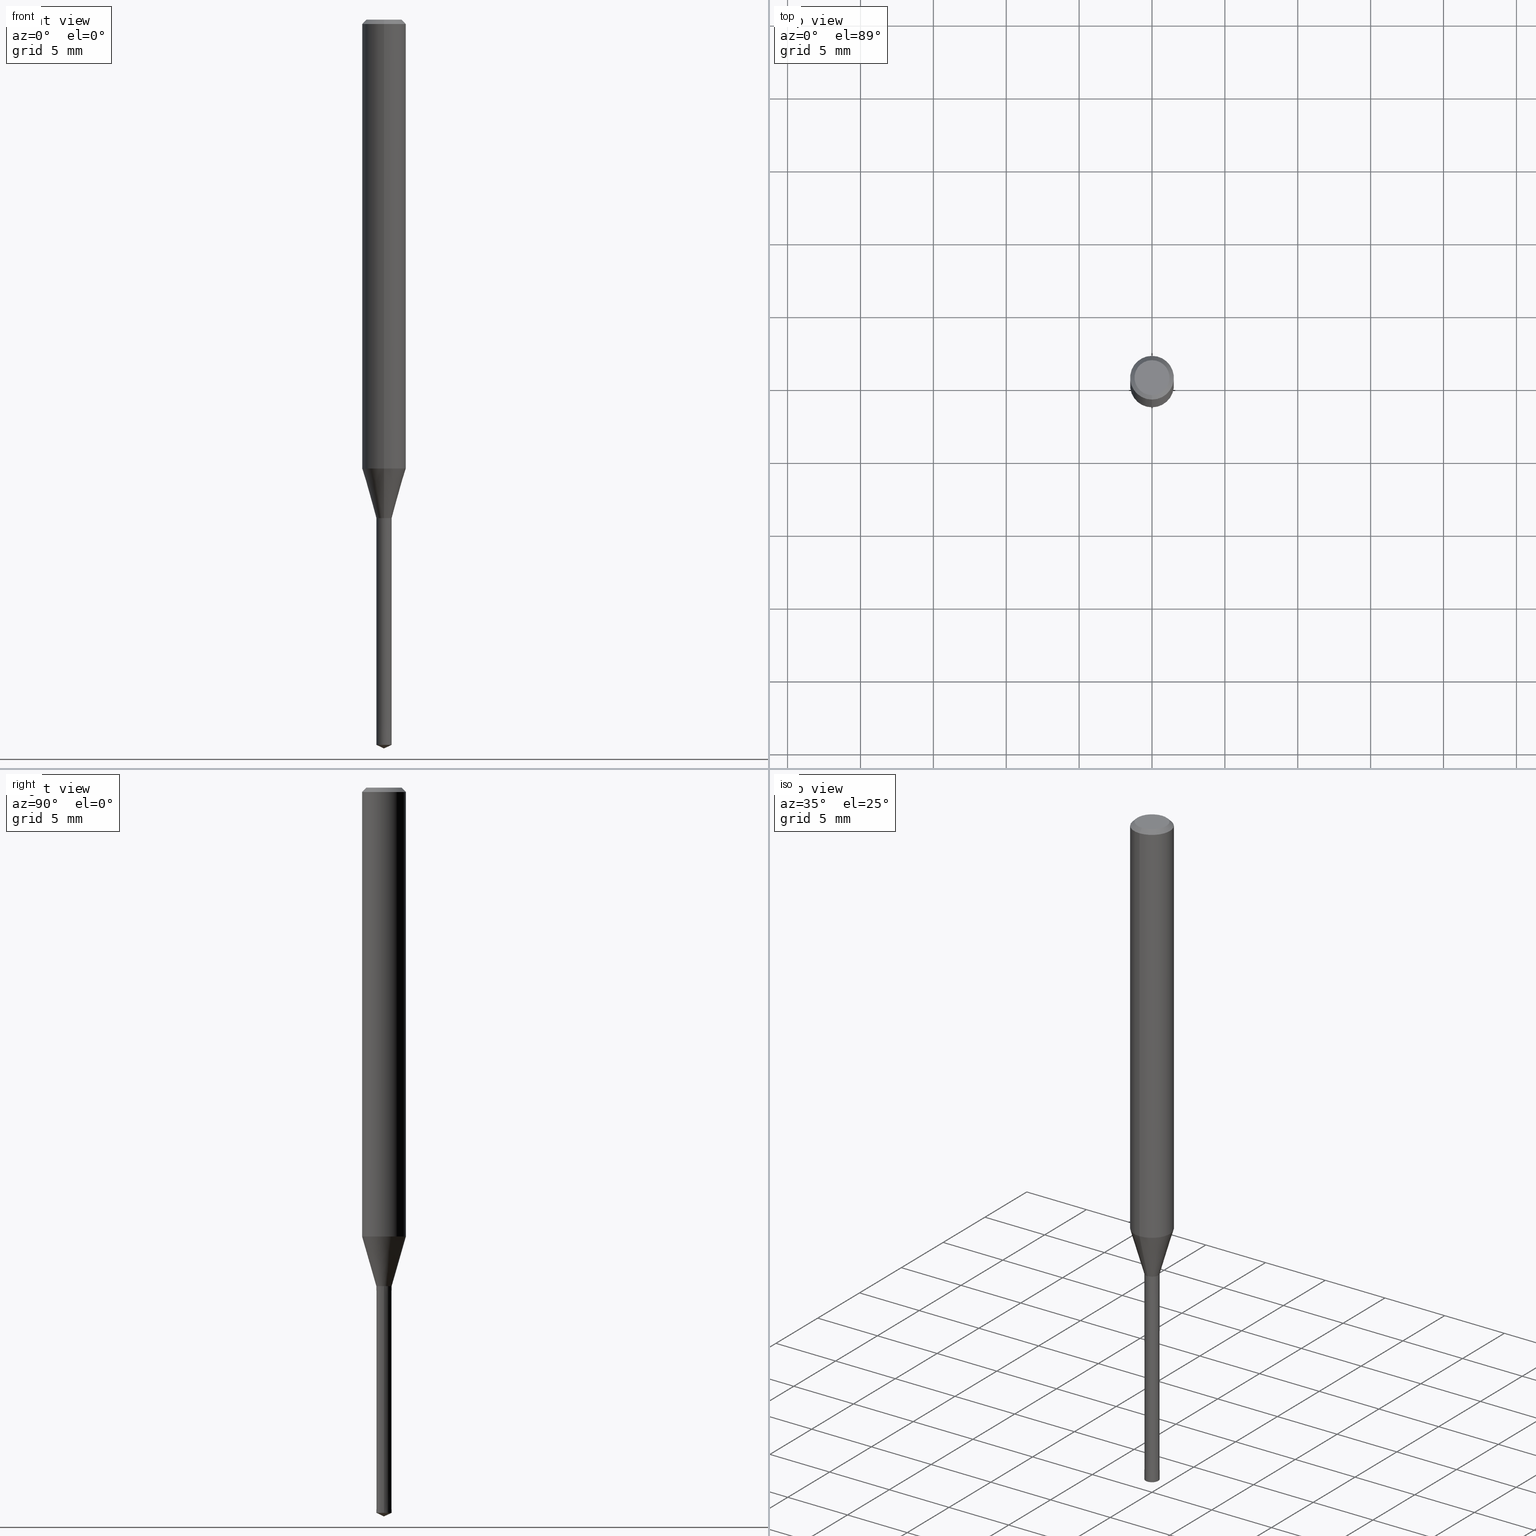
[diagram: canonical four-view strip — front | top / right | iso, engineering-drawing reading convention]
A machine part, canonical four-view strip (front | top / right | iso — engineering-drawing reading convention). The complete STEP part file that produces these views, byte-faithful:
ISO-10303-21;
HEADER;
FILE_DESCRIPTION(('no description'),'unknown implementation level');
FILE_NAME('UTDLX2105-158-Huellk.stp','  ',('CIMSOURCE GmbH'),('CADClick - KiM GmbH - www.kimweb.de'),'unknown preprocess','ACIS','unknown authorization');
FILE_SCHEMA(('automotive_design'));
ENDSEC;
DATA;
#1=MECHANICAL_DESIGN_GEOMETRIC_PRESENTATION_REPRESENTATION(' ',(#14,#15,#16,#17,#18,#19,#20,#21,#22,#23,#24,#25,#26,#27,#28,#29,#30,#31,#32,#33,#34,#35,#36,#37,#38,#39,#40,#41,#42,#43,#44,#45,#46,#47,#48,#49,#50,#51,#52,#53,#54,#55,#56,#57,#58,#59,#60,#61,#62,#63,#64,#65,#66,#67,#68,#69,#70,#71),#10);
#2=PRODUCT_DEFINITION_CONTEXT('',#72,'design');
#3=APPLICATION_PROTOCOL_DEFINITION('INTERNATIONAL STANDARD','automotive_design',1994,#72);
#4=PRODUCT_CATEGORY_RELATIONSHIP('NONE','NONE',#73,#74);
#5=SHAPE_DEFINITION_REPRESENTATION(#75,#76);
#6=PRODUCT_DEFINITION_CONTEXT('',#77,'design');
#7=APPLICATION_PROTOCOL_DEFINITION('INTERNATIONAL STANDARD','automotive_design',1994,#77);
#8=PRODUCT_CATEGORY_RELATIONSHIP('NONE','NONE',#78,#79);
#9=SHAPE_DEFINITION_REPRESENTATION(#80,#81);
#10= (GEOMETRIC_REPRESENTATION_CONTEXT(3)GLOBAL_UNCERTAINTY_ASSIGNED_CONTEXT((#84))GLOBAL_UNIT_ASSIGNED_CONTEXT((#86,#87,#88))REPRESENTATION_CONTEXT('NONE','WORKSPACE'));
#14=STYLED_ITEM('',(#90),#91);
#15=STYLED_ITEM('',(#92),#93);
#16=STYLED_ITEM('',(#94),#95);
#17=STYLED_ITEM('',(#96),#97);
#18=STYLED_ITEM('',(#98),#99);
#19=STYLED_ITEM('',(#100),#101);
#20=STYLED_ITEM('',(#102),#103);
#21=STYLED_ITEM('',(#104),#105);
#22=STYLED_ITEM('',(#106),#107);
#23=STYLED_ITEM('',(#108),#109);
#24=STYLED_ITEM('',(#110),#111);
#25=STYLED_ITEM('',(#112),#113);
#26=STYLED_ITEM('',(#114),#115);
#27=STYLED_ITEM('',(#116),#117);
#28=STYLED_ITEM('',(#118),#119);
#29=STYLED_ITEM('',(#120),#121);
#30=STYLED_ITEM('',(#122),#123);
#31=STYLED_ITEM('',(#124),#125);
#32=STYLED_ITEM('',(#126),#127);
#33=STYLED_ITEM('',(#128),#129);
#34=STYLED_ITEM('',(#130),#131);
#35=STYLED_ITEM('',(#132),#133);
#36=STYLED_ITEM('',(#134),#135);
#37=STYLED_ITEM('',(#136),#137);
#38=STYLED_ITEM('',(#138),#139);
#39=STYLED_ITEM('',(#140),#141);
#40=STYLED_ITEM('',(#142),#143);
#41=STYLED_ITEM('',(#144),#145);
#42=STYLED_ITEM('',(#146),#147);
#43=STYLED_ITEM('',(#148),#149);
#44=STYLED_ITEM('',(#150),#151);
#45=STYLED_ITEM('',(#152),#153);
#46=STYLED_ITEM('',(#154),#155);
#47=STYLED_ITEM('',(#156),#157);
#48=STYLED_ITEM('',(#158),#159);
#49=STYLED_ITEM('',(#160),#161);
#50=STYLED_ITEM('',(#162),#163);
#51=STYLED_ITEM('',(#164),#165);
#52=STYLED_ITEM('',(#166),#167);
#53=STYLED_ITEM('',(#168),#169);
#54=STYLED_ITEM('',(#170),#171);
#55=STYLED_ITEM('',(#172),#173);
#56=STYLED_ITEM('',(#174),#175);
#57=STYLED_ITEM('',(#176),#177);
#58=STYLED_ITEM('',(#178),#179);
#59=STYLED_ITEM('',(#180),#181);
#60=STYLED_ITEM('',(#182),#183);
#61=STYLED_ITEM('',(#184),#185);
#62=STYLED_ITEM('',(#186),#187);
#63=STYLED_ITEM('',(#188),#189);
#64=STYLED_ITEM('',(#190),#191);
#65=STYLED_ITEM('',(#192),#193);
#66=STYLED_ITEM('',(#194),#195);
#67=STYLED_ITEM('',(#196),#197);
#68=STYLED_ITEM('',(#198),#199);
#69=STYLED_ITEM('',(#200),#201);
#70=STYLED_ITEM('',(#202),#203);
#71=STYLED_ITEM('',(#204),#205);
#72=APPLICATION_CONTEXT(' ');
#73=PRODUCT_CATEGORY('part','NONE');
#74=PRODUCT_RELATED_PRODUCT_CATEGORY('detail',' ',(#206));
#75=PRODUCT_DEFINITION_SHAPE('NONE','NONE',#207);
#76=ADVANCED_BREP_SHAPE_REPRESENTATION('1',(#157,#208),#10);
#77=APPLICATION_CONTEXT(' ');
#78=PRODUCT_CATEGORY('part','NONE');
#79=PRODUCT_RELATED_PRODUCT_CATEGORY('detail',' ',(#209));
#80=PRODUCT_DEFINITION_SHAPE('NONE','NONE',#210);
#81=ADVANCED_BREP_SHAPE_REPRESENTATION('2',(#99,#211),#10);
#84=UNCERTAINTY_MEASURE_WITH_UNIT(LENGTH_MEASURE(1.0E-006),#86,'','');
#86= (CONVERSION_BASED_UNIT('MILLIMETRE',#214)LENGTH_UNIT()NAMED_UNIT(#217));
#87= (NAMED_UNIT(#219)PLANE_ANGLE_UNIT()SI_UNIT($,.RADIAN.));
#88= (NAMED_UNIT(#219)SOLID_ANGLE_UNIT()SI_UNIT($,.STERADIAN.));
#90=PRESENTATION_STYLE_ASSIGNMENT((#225));
#91=EDGE_CURVE('',#149,#117,#226,.T.);
#92=PRESENTATION_STYLE_ASSIGNMENT((#227));
#93=VERTEX_POINT('',#228);
#94=PRESENTATION_STYLE_ASSIGNMENT((#229));
#95=EDGE_CURVE('',#129,#143,#230,.T.);
#96=PRESENTATION_STYLE_ASSIGNMENT((#231));
#97=EDGE_CURVE('',#203,#141,#232,.T.);
#98=PRESENTATION_STYLE_ASSIGNMENT((#233));
#99=MANIFOLD_SOLID_BREP('2',#234);
#100=PRESENTATION_STYLE_ASSIGNMENT((#235));
#101=ADVANCED_FACE('',(#236),#237,.T.);
#102=PRESENTATION_STYLE_ASSIGNMENT((#238));
#103=EDGE_CURVE('',#141,#203,#239,.T.);
#104=PRESENTATION_STYLE_ASSIGNMENT((#240));
#105=EDGE_CURVE('',#203,#117,#241,.T.);
#106=PRESENTATION_STYLE_ASSIGNMENT((#242));
#107=ADVANCED_FACE('',(#243),#244,.T.);
#108=PRESENTATION_STYLE_ASSIGNMENT((#245));
#109=EDGE_CURVE('',#167,#129,#246,.T.);
#110=PRESENTATION_STYLE_ASSIGNMENT((#247));
#111=VERTEX_POINT('',#248);
#112=PRESENTATION_STYLE_ASSIGNMENT((#249));
#113=EDGE_CURVE('',#155,#195,#250,.T.);
#114=PRESENTATION_STYLE_ASSIGNMENT((#251));
#115=EDGE_CURVE('',#135,#111,#252,.T.);
#116=PRESENTATION_STYLE_ASSIGNMENT((#253));
#117=VERTEX_POINT('',#254);
#118=PRESENTATION_STYLE_ASSIGNMENT((#255));
#119=EDGE_CURVE('',#155,#189,#256,.T.);
#120=PRESENTATION_STYLE_ASSIGNMENT((#257));
#121=ADVANCED_FACE('',(#258),#259,.T.);
#122=PRESENTATION_STYLE_ASSIGNMENT((#260));
#123=ADVANCED_FACE('',(#261),#262,.T.);
#124=PRESENTATION_STYLE_ASSIGNMENT((#263));
#125=ADVANCED_FACE('',(#264),#265,.T.);
#126=PRESENTATION_STYLE_ASSIGNMENT((#266));
#127=EDGE_CURVE('',#145,#195,#267,.T.);
#128=PRESENTATION_STYLE_ASSIGNMENT((#268));
#129=VERTEX_POINT('',#269);
#130=PRESENTATION_STYLE_ASSIGNMENT((#270));
#131=EDGE_CURVE('',#111,#135,#271,.T.);
#132=PRESENTATION_STYLE_ASSIGNMENT((#272));
#133=ADVANCED_FACE('',(#273),#274,.T.);
#134=PRESENTATION_STYLE_ASSIGNMENT((#275));
#135=VERTEX_POINT('',#276);
#136=PRESENTATION_STYLE_ASSIGNMENT((#277));
#137=EDGE_CURVE('',#129,#167,#278,.T.);
#138=PRESENTATION_STYLE_ASSIGNMENT((#279));
#139=ADVANCED_FACE('',(#280),#281,.T.);
#140=PRESENTATION_STYLE_ASSIGNMENT((#282));
#141=VERTEX_POINT('',#283);
#142=PRESENTATION_STYLE_ASSIGNMENT((#284));
#143=VERTEX_POINT('',#285);
#144=PRESENTATION_STYLE_ASSIGNMENT((#286));
#145=VERTEX_POINT('',#287);
#146=PRESENTATION_STYLE_ASSIGNMENT((#288));
#147=ADVANCED_FACE('',(#289),#290,.T.);
#148=PRESENTATION_STYLE_ASSIGNMENT((#291));
#149=VERTEX_POINT('',#292);
#150=PRESENTATION_STYLE_ASSIGNMENT((#293));
#151=EDGE_CURVE('',#93,#145,#294,.T.);
#152=PRESENTATION_STYLE_ASSIGNMENT((#295));
#153=VERTEX_POINT('',#296);
#154=PRESENTATION_STYLE_ASSIGNMENT((#297));
#155=VERTEX_POINT('',#298);
#156=PRESENTATION_STYLE_ASSIGNMENT((#299));
#157=MANIFOLD_SOLID_BREP('1',#300);
#158=PRESENTATION_STYLE_ASSIGNMENT((#301));
#159=EDGE_CURVE('',#149,#141,#302,.T.);
#160=PRESENTATION_STYLE_ASSIGNMENT((#303));
#161=ADVANCED_FACE('',(#304),#305,.T.);
#162=PRESENTATION_STYLE_ASSIGNMENT((#306));
#163=EDGE_CURVE('',#195,#155,#307,.T.);
#164=PRESENTATION_STYLE_ASSIGNMENT((#308));
#165=EDGE_CURVE('',#189,#153,#309,.T.);
#166=PRESENTATION_STYLE_ASSIGNMENT((#310));
#167=VERTEX_POINT('',#311);
#168=PRESENTATION_STYLE_ASSIGNMENT((#312));
#169=EDGE_CURVE('',#189,#145,#313,.T.);
#170=PRESENTATION_STYLE_ASSIGNMENT((#314));
#171=EDGE_CURVE('',#153,#93,#315,.T.);
#172=PRESENTATION_STYLE_ASSIGNMENT((#316));
#173=ADVANCED_FACE('',(#317),#318,.T.);
#174=PRESENTATION_STYLE_ASSIGNMENT((#319));
#175=ADVANCED_FACE('',(#320),#321,.T.);
#176=PRESENTATION_STYLE_ASSIGNMENT((#322));
#177=ADVANCED_FACE('',(#323),#324,.T.);
#178=PRESENTATION_STYLE_ASSIGNMENT((#325));
#179=EDGE_CURVE('',#195,#203,#326,.T.);
#180=PRESENTATION_STYLE_ASSIGNMENT((#327));
#181=EDGE_CURVE('',#141,#155,#328,.T.);
#182=PRESENTATION_STYLE_ASSIGNMENT((#329));
#183=EDGE_CURVE('',#117,#149,#330,.T.);
#184=PRESENTATION_STYLE_ASSIGNMENT((#331));
#185=EDGE_CURVE('',#93,#153,#332,.T.);
#186=PRESENTATION_STYLE_ASSIGNMENT((#333));
#187=EDGE_CURVE('',#135,#129,#334,.T.);
#188=PRESENTATION_STYLE_ASSIGNMENT((#335));
#189=VERTEX_POINT('',#336);
#190=PRESENTATION_STYLE_ASSIGNMENT((#337));
#191=EDGE_CURVE('',#143,#167,#338,.T.);
#192=PRESENTATION_STYLE_ASSIGNMENT((#339));
#193=EDGE_CURVE('',#167,#111,#340,.T.);
#194=PRESENTATION_STYLE_ASSIGNMENT((#341));
#195=VERTEX_POINT('',#342);
#196=PRESENTATION_STYLE_ASSIGNMENT((#343));
#197=ADVANCED_FACE('',(#344),#345,.T.);
#198=PRESENTATION_STYLE_ASSIGNMENT((#346));
#199=ADVANCED_FACE('',(#347),#348,.T.);
#200=PRESENTATION_STYLE_ASSIGNMENT((#349));
#201=ADVANCED_FACE('',(#350),#351,.T.);
#202=PRESENTATION_STYLE_ASSIGNMENT((#352));
#203=VERTEX_POINT('',#353);
#204=PRESENTATION_STYLE_ASSIGNMENT((#354));
#205=EDGE_CURVE('',#145,#189,#355,.T.);
#206=PRODUCT('1','1','PART-1-DESC',(#356));
#207=PRODUCT_DEFINITION('NONE','NONE',#357,#2);
#208=AXIS2_PLACEMENT_3D('',#358,#359,#360);
#209=PRODUCT('2','2','PART-2-DESC',(#361));
#210=PRODUCT_DEFINITION('NONE','NONE',#362,#6);
#211=AXIS2_PLACEMENT_3D('',#363,#364,#365);
#214=LENGTH_MEASURE_WITH_UNIT(LENGTH_MEASURE(1.0),#366);
#217=DIMENSIONAL_EXPONENTS(1.0,0.0,0.0,0.0,0.0,0.0,0.0);
#219=DIMENSIONAL_EXPONENTS(0.0,0.0,0.0,0.0,0.0,0.0,0.0);
#225=CURVE_STYLE('',#367,POSITIVE_LENGTH_MEASURE(1.0E-006),#368);
#226=CIRCLE('',#369,1.2);
#227=POINT_STYLE(' ',#370,POSITIVE_LENGTH_MEASURE(1.0E-006),#371);
#228=CARTESIAN_POINT('',(6.43530638933659E-017,-0.5255,-34.2));
#229=CURVE_STYLE('',#372,POSITIVE_LENGTH_MEASURE(1.0E-006),#373);
#230=LINE('',#374,#375);
#231=CURVE_STYLE('',#376,POSITIVE_LENGTH_MEASURE(1.0E-006),#377);
#232=CIRCLE('',#378,1.5);
#233=SURFACE_STYLE_USAGE(.BOTH.,#379);
#234=CLOSED_SHELL('',(#121,#199,#201,#107,#125));
#235=SURFACE_STYLE_USAGE(.BOTH.,#380);
#236=FACE_OUTER_BOUND('',#381,.T.);
#237=CYLINDRICAL_SURFACE('',#382,1.5);
#238=CURVE_STYLE('',#383,POSITIVE_LENGTH_MEASURE(1.0E-006),#384);
#239=CIRCLE('',#385,1.5);
#240=CURVE_STYLE('',#386,POSITIVE_LENGTH_MEASURE(1.0E-006),#387);
#241=LINE('',#388,#389);
#242=SURFACE_STYLE_USAGE(.BOTH.,#390);
#243=FACE_OUTER_BOUND('',#391,.T.);
#244=CONICAL_SURFACE('',#392,0.5255,6.42872312288681E-005);
#245=CURVE_STYLE('',#393,POSITIVE_LENGTH_MEASURE(1.0E-006),#394);
#246=CIRCLE('',#395,0.525);
#247=POINT_STYLE(' ',#396,POSITIVE_LENGTH_MEASURE(1.0E-006),#397);
#248=CARTESIAN_POINT('',(0.526,6.44142942110571E-017,-34.2));
#249=CURVE_STYLE('',#398,POSITIVE_LENGTH_MEASURE(1.0E-006),#399);
#250=CIRCLE('',#400,1.5);
#251=CURVE_STYLE('',#401,POSITIVE_LENGTH_MEASURE(1.0E-006),#402);
#252=CIRCLE('',#403,0.526);
#253=POINT_STYLE(' ',#404,POSITIVE_LENGTH_MEASURE(1.0E-006),#405);
#254=CARTESIAN_POINT('',(1.46952762458685E-016,-1.2,0.0));
#255=CURVE_STYLE('',#406,POSITIVE_LENGTH_MEASURE(1.0E-006),#407);
#256=LINE('',#408,#409);
#257=SURFACE_STYLE_USAGE(.BOTH.,#410);
#258=FACE_OUTER_BOUND('',#411,.T.);
#259=CONICAL_SURFACE('',#412,0.2625,1.13446401462768);
#260=SURFACE_STYLE_USAGE(.BOTH.,#413);
#261=FACE_OUTER_BOUND('',#414,.T.);
#262=PLANE('',#415);
#263=SURFACE_STYLE_USAGE(.BOTH.,#416);
#264=FACE_OUTER_BOUND('',#417,.T.);
#265=CONICAL_SURFACE('',#418,0.2625,1.13446401462768);
#266=CURVE_STYLE('',#419,POSITIVE_LENGTH_MEASURE(1.0E-006),#420);
#267=LINE('',#421,#422);
#268=POINT_STYLE(' ',#423,POSITIVE_LENGTH_MEASURE(1.0E-006),#424);
#269=CARTESIAN_POINT('',(-0.525,0.0,-49.75518848));
#270=CURVE_STYLE('',#425,POSITIVE_LENGTH_MEASURE(1.0E-006),#426);
#271=CIRCLE('',#427,0.526);
#272=SURFACE_STYLE_USAGE(.BOTH.,#428);
#273=FACE_OUTER_BOUND('',#429,.T.);
#274=CYLINDRICAL_SURFACE('',#430,1.5);
#275=POINT_STYLE(' ',#431,POSITIVE_LENGTH_MEASURE(1.0E-006),#432);
#276=CARTESIAN_POINT('',(-0.526,0.0,-34.2));
#277=CURVE_STYLE('',#433,POSITIVE_LENGTH_MEASURE(1.0E-006),#434);
#278=CIRCLE('',#435,0.525);
#279=SURFACE_STYLE_USAGE(.BOTH.,#436);
#280=FACE_OUTER_BOUND('',#437,.T.);
#281=CONICAL_SURFACE('',#438,1.35,0.785398163397447);
#282=POINT_STYLE(' ',#439,POSITIVE_LENGTH_MEASURE(1.0E-006),#440);
#283=CARTESIAN_POINT('',(0.0,1.5,-0.300000000000001));
#284=POINT_STYLE(' ',#441,POSITIVE_LENGTH_MEASURE(1.0E-006),#442);
#285=CARTESIAN_POINT('',(0.0,0.0,-50.0));
#286=POINT_STYLE(' ',#443,POSITIVE_LENGTH_MEASURE(1.0E-006),#444);
#287=CARTESIAN_POINT('',(6.42918335756748E-017,-0.525,-34.1991339745962));
#288=SURFACE_STYLE_USAGE(.BOTH.,#445);
#289=FACE_OUTER_BOUND('',#446,.T.);
#290=CONICAL_SURFACE('',#447,1.35,0.785398163397447);
#291=POINT_STYLE(' ',#448,POSITIVE_LENGTH_MEASURE(1.0E-006),#449);
#292=CARTESIAN_POINT('',(0.0,1.2,0.0));
#293=CURVE_STYLE('',#450,POSITIVE_LENGTH_MEASURE(1.0E-006),#451);
#294=LINE('',#452,#453);
#295=POINT_STYLE(' ',#454,POSITIVE_LENGTH_MEASURE(1.0E-006),#455);
#296=CARTESIAN_POINT('',(0.0,0.5255,-34.2));
#297=POINT_STYLE(' ',#456,POSITIVE_LENGTH_MEASURE(1.0E-006),#457);
#298=CARTESIAN_POINT('',(0.0,1.5,-30.8));
#299=SURFACE_STYLE_USAGE(.BOTH.,#458);
#300=CLOSED_SHELL('',(#173,#175,#133,#147,#161,#139,#101,#197,#177,#123));
#301=CURVE_STYLE('',#459,POSITIVE_LENGTH_MEASURE(1.0E-006),#460);
#302=LINE('',#461,#462);
#303=SURFACE_STYLE_USAGE(.BOTH.,#463);
#304=FACE_OUTER_BOUND('',#464,.T.);
#305=PLANE('',#465);
#306=CURVE_STYLE('',#466,POSITIVE_LENGTH_MEASURE(1.0E-006),#467);
#307=CIRCLE('',#468,1.5);
#308=CURVE_STYLE('',#469,POSITIVE_LENGTH_MEASURE(1.0E-006),#470);
#309=LINE('',#471,#472);
#310=POINT_STYLE(' ',#473,POSITIVE_LENGTH_MEASURE(1.0E-006),#474);
#311=CARTESIAN_POINT('',(0.525,6.42918335756748E-017,-49.75518848));
#312=CURVE_STYLE('',#475,POSITIVE_LENGTH_MEASURE(1.0E-006),#476);
#313=CIRCLE('',#477,0.525);
#314=CURVE_STYLE('',#478,POSITIVE_LENGTH_MEASURE(1.0E-006),#479);
#315=CIRCLE('',#480,0.5255);
#316=SURFACE_STYLE_USAGE(.BOTH.,#481);
#317=FACE_OUTER_BOUND('',#482,.T.);
#318=CONICAL_SURFACE('',#483,0.52525,0.52359877559836);
#319=SURFACE_STYLE_USAGE(.BOTH.,#484);
#320=FACE_OUTER_BOUND('',#485,.T.);
#321=CONICAL_SURFACE('',#486,1.0125,0.279338040987868);
#322=SURFACE_STYLE_USAGE(.BOTH.,#487);
#323=FACE_OUTER_BOUND('',#488,.T.);
#324=CONICAL_SURFACE('',#489,0.52525,0.52359877559836);
#325=CURVE_STYLE('',#490,POSITIVE_LENGTH_MEASURE(1.0E-006),#491);
#326=LINE('',#492,#493);
#327=CURVE_STYLE('',#494,POSITIVE_LENGTH_MEASURE(1.0E-006),#495);
#328=LINE('',#496,#497);
#329=CURVE_STYLE('',#498,POSITIVE_LENGTH_MEASURE(1.0E-006),#499);
#330=CIRCLE('',#500,1.2);
#331=CURVE_STYLE('',#501,POSITIVE_LENGTH_MEASURE(1.0E-006),#502);
#332=CIRCLE('',#503,0.5255);
#333=CURVE_STYLE('',#504,POSITIVE_LENGTH_MEASURE(1.0E-006),#505);
#334=LINE('',#506,#507);
#335=POINT_STYLE(' ',#508,POSITIVE_LENGTH_MEASURE(1.0E-006),#509);
#336=CARTESIAN_POINT('',(0.0,0.525,-34.1991339745962));
#337=CURVE_STYLE('',#510,POSITIVE_LENGTH_MEASURE(1.0E-006),#511);
#338=LINE('',#512,#513);
#339=CURVE_STYLE('',#514,POSITIVE_LENGTH_MEASURE(1.0E-006),#515);
#340=LINE('',#516,#517);
#341=POINT_STYLE(' ',#518,POSITIVE_LENGTH_MEASURE(1.0E-006),#519);
#342=CARTESIAN_POINT('',(1.83690953073357E-016,-1.5,-30.8));
#343=SURFACE_STYLE_USAGE(.BOTH.,#520);
#344=FACE_OUTER_BOUND('',#521,.T.);
#345=CONICAL_SURFACE('',#522,1.0125,0.279338040987868);
#346=SURFACE_STYLE_USAGE(.BOTH.,#523);
#347=FACE_OUTER_BOUND('',#524,.T.);
#348=CONICAL_SURFACE('',#525,0.5255,6.42872312288681E-005);
#349=SURFACE_STYLE_USAGE(.BOTH.,#526);
#350=FACE_OUTER_BOUND('',#527,.T.);
#351=PLANE('',#528);
#352=POINT_STYLE(' ',#529,POSITIVE_LENGTH_MEASURE(1.0E-006),#530);
#353=CARTESIAN_POINT('',(1.83690953073357E-016,-1.5,-0.300000000000001));
#354=CURVE_STYLE('',#531,POSITIVE_LENGTH_MEASURE(1.0E-006),#532);
#355=CIRCLE('',#533,0.525);
#356=PRODUCT_CONTEXT('',#72,'mechanical');
#357=PRODUCT_DEFINITION_FORMATION_WITH_SPECIFIED_SOURCE(' ','NONE',#206,.NOT_KNOWN.);
#358=CARTESIAN_POINT('',(0.0,0.0,0.0));
#359=DIRECTION('',(0.0,0.0,1.0));
#360=DIRECTION('',(1.0,0.0,0.0));
#361=PRODUCT_CONTEXT('',#77,'mechanical');
#362=PRODUCT_DEFINITION_FORMATION_WITH_SPECIFIED_SOURCE(' ','NONE',#209,.NOT_KNOWN.);
#363=CARTESIAN_POINT('',(0.0,0.0,0.0));
#364=DIRECTION('',(0.0,0.0,1.0));
#365=DIRECTION('',(1.0,0.0,0.0));
#366= (NAMED_UNIT(#217)LENGTH_UNIT()SI_UNIT(.MILLI.,.METRE.));
#367=DRAUGHTING_PRE_DEFINED_CURVE_FONT('continuous');
#368=COLOUR_RGB('',0.498039215803146,0.498039215803146,0.498039215803146);
#369=AXIS2_PLACEMENT_3D('',#535,#536,#537);
#370=PRE_DEFINED_MARKER('');
#371=COLOUR_RGB('',0.498039215803146,0.498039215803146,0.498039215803146);
#372=DRAUGHTING_PRE_DEFINED_CURVE_FONT('continuous');
#373=COLOUR_RGB('',0.800000011920929,0.800000011920929,0.800000011920929);
#374=CARTESIAN_POINT('',(-0.2625,-3.21459167878374E-017,-49.87759424));
#375=VECTOR('',#538,1.0);
#376=DRAUGHTING_PRE_DEFINED_CURVE_FONT('continuous');
#377=COLOUR_RGB('',0.498039215803146,0.498039215803146,0.498039215803146);
#378=AXIS2_PLACEMENT_3D('',#539,#540,#541);
#379=SURFACE_SIDE_STYLE('',(#542));
#380=SURFACE_SIDE_STYLE('',(#543));
#381=EDGE_LOOP('',(#544,#545,#546,#547));
#382=AXIS2_PLACEMENT_3D('',#548,#549,#550);
#383=DRAUGHTING_PRE_DEFINED_CURVE_FONT('continuous');
#384=COLOUR_RGB('',0.498039215803146,0.498039215803146,0.498039215803146);
#385=AXIS2_PLACEMENT_3D('',#551,#552,#553);
#386=DRAUGHTING_PRE_DEFINED_CURVE_FONT('continuous');
#387=COLOUR_RGB('',0.498039215803146,0.498039215803146,0.498039215803146);
#388=CARTESIAN_POINT('',(1.65321857766021E-016,-1.35,-0.150000000000002));
#389=VECTOR('',#554,1.0);
#390=SURFACE_SIDE_STYLE('',(#555));
#391=EDGE_LOOP('',(#556,#557,#558,#559));
#392=AXIS2_PLACEMENT_3D('',#560,#561,#562);
#393=DRAUGHTING_PRE_DEFINED_CURVE_FONT('continuous');
#394=COLOUR_RGB('',0.800000011920929,0.800000011920929,0.800000011920929);
#395=AXIS2_PLACEMENT_3D('',#563,#564,#565);
#396=PRE_DEFINED_MARKER('');
#397=COLOUR_RGB('',0.800000011920929,0.800000011920929,0.800000011920929);
#398=DRAUGHTING_PRE_DEFINED_CURVE_FONT('continuous');
#399=COLOUR_RGB('',0.498039215803146,0.498039215803146,0.498039215803146);
#400=AXIS2_PLACEMENT_3D('',#566,#567,#568);
#401=DRAUGHTING_PRE_DEFINED_CURVE_FONT('continuous');
#402=COLOUR_RGB('',0.800000011920929,0.800000011920929,0.800000011920929);
#403=AXIS2_PLACEMENT_3D('',#569,#570,#571);
#404=PRE_DEFINED_MARKER('');
#405=COLOUR_RGB('',0.498039215803146,0.498039215803146,0.498039215803146);
#406=DRAUGHTING_PRE_DEFINED_CURVE_FONT('continuous');
#407=COLOUR_RGB('',0.498039215803146,0.498039215803146,0.498039215803146);
#408=CARTESIAN_POINT('',(-1.23991393324516E-016,1.0125,-32.4995669872981));
#409=VECTOR('',#572,1.0);
#410=SURFACE_SIDE_STYLE('',(#573));
#411=EDGE_LOOP('',(#574,#575,#576));
#412=AXIS2_PLACEMENT_3D('',#577,#578,#579);
#413=SURFACE_SIDE_STYLE('',(#580));
#414=EDGE_LOOP('',(#581,#582));
#415=AXIS2_PLACEMENT_3D('',#583,#584,#585);
#416=SURFACE_SIDE_STYLE('',(#586));
#417=EDGE_LOOP('',(#587,#588,#589));
#418=AXIS2_PLACEMENT_3D('',#590,#591,#592);
#419=DRAUGHTING_PRE_DEFINED_CURVE_FONT('continuous');
#420=COLOUR_RGB('',0.498039215803146,0.498039215803146,0.498039215803146);
#421=CARTESIAN_POINT('',(1.23991393324516E-016,-1.0125,-32.4995669872981));
#422=VECTOR('',#593,1.0);
#423=PRE_DEFINED_MARKER('');
#424=COLOUR_RGB('',0.800000011920929,0.800000011920929,0.800000011920929);
#425=DRAUGHTING_PRE_DEFINED_CURVE_FONT('continuous');
#426=COLOUR_RGB('',0.800000011920929,0.800000011920929,0.800000011920929);
#427=AXIS2_PLACEMENT_3D('',#594,#595,#596);
#428=SURFACE_SIDE_STYLE('',(#597));
#429=EDGE_LOOP('',(#598,#599,#600,#601));
#430=AXIS2_PLACEMENT_3D('',#602,#603,#604);
#431=PRE_DEFINED_MARKER('');
#432=COLOUR_RGB('',0.800000011920929,0.800000011920929,0.800000011920929);
#433=DRAUGHTING_PRE_DEFINED_CURVE_FONT('continuous');
#434=COLOUR_RGB('',0.800000011920929,0.800000011920929,0.800000011920929);
#435=AXIS2_PLACEMENT_3D('',#605,#606,#607);
#436=SURFACE_SIDE_STYLE('',(#608));
#437=EDGE_LOOP('',(#609,#610,#611,#612));
#438=AXIS2_PLACEMENT_3D('',#613,#614,#615);
#439=PRE_DEFINED_MARKER('');
#440=COLOUR_RGB('',0.498039215803146,0.498039215803146,0.498039215803146);
#441=PRE_DEFINED_MARKER('');
#442=COLOUR_RGB('',0.800000011920929,0.800000011920929,0.800000011920929);
#443=PRE_DEFINED_MARKER('');
#444=COLOUR_RGB('',0.498039215803146,0.498039215803146,0.498039215803146);
#445=SURFACE_SIDE_STYLE('',(#616));
#446=EDGE_LOOP('',(#617,#618,#619,#620));
#447=AXIS2_PLACEMENT_3D('',#621,#622,#623);
#448=PRE_DEFINED_MARKER('');
#449=COLOUR_RGB('',0.498039215803146,0.498039215803146,0.498039215803146);
#450=DRAUGHTING_PRE_DEFINED_CURVE_FONT('continuous');
#451=COLOUR_RGB('',0.498039215803146,0.498039215803146,0.498039215803146);
#452=CARTESIAN_POINT('',(6.43224487345203E-017,-0.52525,-34.1995669872981));
#453=VECTOR('',#624,1.0);
#454=PRE_DEFINED_MARKER('');
#455=COLOUR_RGB('',0.498039215803146,0.498039215803146,0.498039215803146);
#456=PRE_DEFINED_MARKER('');
#457=COLOUR_RGB('',0.498039215803146,0.498039215803146,0.498039215803146);
#458=SURFACE_SIDE_STYLE('',(#625));
#459=DRAUGHTING_PRE_DEFINED_CURVE_FONT('continuous');
#460=COLOUR_RGB('',0.498039215803146,0.498039215803146,0.498039215803146);
#461=CARTESIAN_POINT('',(-1.65321857766021E-016,1.35,-0.150000000000002));
#462=VECTOR('',#626,1.0);
#463=SURFACE_SIDE_STYLE('',(#627));
#464=EDGE_LOOP('',(#628,#629));
#465=AXIS2_PLACEMENT_3D('',#630,#631,#632);
#466=DRAUGHTING_PRE_DEFINED_CURVE_FONT('continuous');
#467=COLOUR_RGB('',0.498039215803146,0.498039215803146,0.498039215803146);
#468=AXIS2_PLACEMENT_3D('',#633,#634,#635);
#469=DRAUGHTING_PRE_DEFINED_CURVE_FONT('continuous');
#470=COLOUR_RGB('',0.498039215803146,0.498039215803146,0.498039215803146);
#471=CARTESIAN_POINT('',(-6.43224487345204E-017,0.52525,-34.1995669872981));
#472=VECTOR('',#636,1.0);
#473=PRE_DEFINED_MARKER('');
#474=COLOUR_RGB('',0.800000011920929,0.800000011920929,0.800000011920929);
#475=DRAUGHTING_PRE_DEFINED_CURVE_FONT('continuous');
#476=COLOUR_RGB('',0.498039215803146,0.498039215803146,0.498039215803146);
#477=AXIS2_PLACEMENT_3D('',#637,#638,#639);
#478=DRAUGHTING_PRE_DEFINED_CURVE_FONT('continuous');
#479=COLOUR_RGB('',0.498039215803146,0.498039215803146,0.498039215803146);
#480=AXIS2_PLACEMENT_3D('',#640,#641,#642);
#481=SURFACE_SIDE_STYLE('',(#643));
#482=EDGE_LOOP('',(#644,#645,#646,#647));
#483=AXIS2_PLACEMENT_3D('',#648,#649,#650);
#484=SURFACE_SIDE_STYLE('',(#651));
#485=EDGE_LOOP('',(#652,#653,#654,#655));
#486=AXIS2_PLACEMENT_3D('',#656,#657,#658);
#487=SURFACE_SIDE_STYLE('',(#659));
#488=EDGE_LOOP('',(#660,#661,#662,#663));
#489=AXIS2_PLACEMENT_3D('',#664,#665,#666);
#490=DRAUGHTING_PRE_DEFINED_CURVE_FONT('continuous');
#491=COLOUR_RGB('',0.498039215803146,0.498039215803146,0.498039215803146);
#492=CARTESIAN_POINT('',(1.83690953073357E-016,-1.5,-15.55));
#493=VECTOR('',#667,1.0);
#494=DRAUGHTING_PRE_DEFINED_CURVE_FONT('continuous');
#495=COLOUR_RGB('',0.498039215803146,0.498039215803146,0.498039215803146);
#496=CARTESIAN_POINT('',(-1.83690953073357E-016,1.5,-15.55));
#497=VECTOR('',#668,1.0);
#498=DRAUGHTING_PRE_DEFINED_CURVE_FONT('continuous');
#499=COLOUR_RGB('',0.498039215803146,0.498039215803146,0.498039215803146);
#500=AXIS2_PLACEMENT_3D('',#669,#670,#671);
#501=DRAUGHTING_PRE_DEFINED_CURVE_FONT('continuous');
#502=COLOUR_RGB('',0.498039215803146,0.498039215803146,0.498039215803146);
#503=AXIS2_PLACEMENT_3D('',#672,#673,#674);
#504=DRAUGHTING_PRE_DEFINED_CURVE_FONT('continuous');
#505=COLOUR_RGB('',0.800000011920929,0.800000011920929,0.800000011920929);
#506=CARTESIAN_POINT('',(-0.5255,-6.43530638933659E-017,-41.97759424));
#507=VECTOR('',#675,1.0);
#508=PRE_DEFINED_MARKER('');
#509=COLOUR_RGB('',0.498039215803146,0.498039215803146,0.498039215803146);
#510=DRAUGHTING_PRE_DEFINED_CURVE_FONT('continuous');
#511=COLOUR_RGB('',0.800000011920929,0.800000011920929,0.800000011920929);
#512=CARTESIAN_POINT('',(0.2625,3.21459167878374E-017,-49.87759424));
#513=VECTOR('',#676,1.0);
#514=DRAUGHTING_PRE_DEFINED_CURVE_FONT('continuous');
#515=COLOUR_RGB('',0.800000011920929,0.800000011920929,0.800000011920929);
#516=CARTESIAN_POINT('',(0.5255,6.43530638933659E-017,-41.97759424));
#517=VECTOR('',#677,1.0);
#518=PRE_DEFINED_MARKER('');
#519=COLOUR_RGB('',0.498039215803146,0.498039215803146,0.498039215803146);
#520=SURFACE_SIDE_STYLE('',(#678));
#521=EDGE_LOOP('',(#679,#680,#681,#682));
#522=AXIS2_PLACEMENT_3D('',#683,#684,#685);
#523=SURFACE_SIDE_STYLE('',(#686));
#524=EDGE_LOOP('',(#687,#688,#689,#690));
#525=AXIS2_PLACEMENT_3D('',#691,#692,#693);
#526=SURFACE_SIDE_STYLE('',(#694));
#527=EDGE_LOOP('',(#695,#696));
#528=AXIS2_PLACEMENT_3D('',#697,#698,#699);
#529=PRE_DEFINED_MARKER('');
#530=COLOUR_RGB('',0.498039215803146,0.498039215803146,0.498039215803146);
#531=DRAUGHTING_PRE_DEFINED_CURVE_FONT('continuous');
#532=COLOUR_RGB('',0.498039215803146,0.498039215803146,0.498039215803146);
#533=AXIS2_PLACEMENT_3D('',#700,#701,#702);
#535=CARTESIAN_POINT('',(0.0,0.0,0.0));
#536=DIRECTION('',(0.0,0.0,-1.0));
#537=DIRECTION('',(0.0,1.0,0.0));
#538=DIRECTION('',(0.906307787388,1.10987027495405E-016,-0.422618260987226));
#539=CARTESIAN_POINT('',(0.0,0.0,-0.300000000000001));
#540=DIRECTION('',(0.0,0.0,-1.0));
#541=DIRECTION('',(0.0,1.0,0.0));
#542=SURFACE_STYLE_FILL_AREA(#703);
#543=SURFACE_STYLE_FILL_AREA(#704);
#544=ORIENTED_EDGE('',*,*,#181,.T.);
#545=ORIENTED_EDGE('',*,*,#163,.F.);
#546=ORIENTED_EDGE('',*,*,#179,.T.);
#547=ORIENTED_EDGE('',*,*,#97,.T.);
#548=CARTESIAN_POINT('',(0.0,0.0,-15.55));
#549=DIRECTION('',(-0.0,-0.0,1.0));
#550=DIRECTION('',(0.0,1.0,0.0));
#551=CARTESIAN_POINT('',(0.0,0.0,-0.300000000000001));
#552=DIRECTION('',(0.0,0.0,-1.0));
#553=DIRECTION('',(0.0,1.0,0.0));
#554=DIRECTION('',(-8.65927457071934E-017,0.707106781186546,0.707106781186549));
#555=SURFACE_STYLE_FILL_AREA(#705);
#556=ORIENTED_EDGE('',*,*,#187,.T.);
#557=ORIENTED_EDGE('',*,*,#109,.F.);
#558=ORIENTED_EDGE('',*,*,#193,.T.);
#559=ORIENTED_EDGE('',*,*,#131,.T.);
#560=CARTESIAN_POINT('',(0.0,0.0,-41.97759424));
#561=DIRECTION('',(-0.0,-0.0,1.0));
#562=DIRECTION('',(-1.0,0.0,0.0));
#563=CARTESIAN_POINT('',(0.0,0.0,-49.75518848));
#564=DIRECTION('',(0.0,0.0,-1.0));
#565=DIRECTION('',(-1.0,0.0,0.0));
#566=CARTESIAN_POINT('',(0.0,0.0,-30.8));
#567=DIRECTION('',(0.0,0.0,-1.0));
#568=DIRECTION('',(0.0,1.0,0.0));
#569=CARTESIAN_POINT('',(0.0,0.0,-34.2));
#570=DIRECTION('',(0.0,0.0,-1.0));
#571=DIRECTION('',(-1.0,0.0,0.0));
#572=DIRECTION('',(3.37647739832205E-017,-0.275719408753924,-0.961238163847226));
#573=SURFACE_STYLE_FILL_AREA(#706);
#574=ORIENTED_EDGE('',*,*,#191,.F.);
#575=ORIENTED_EDGE('',*,*,#95,.F.);
#576=ORIENTED_EDGE('',*,*,#137,.T.);
#577=CARTESIAN_POINT('',(0.0,0.0,-49.87759424));
#578=DIRECTION('',(-0.0,-0.0,1.0));
#579=DIRECTION('',(-1.0,0.0,0.0));
#580=SURFACE_STYLE_FILL_AREA(#707);
#581=ORIENTED_EDGE('',*,*,#171,.T.);
#582=ORIENTED_EDGE('',*,*,#185,.T.);
#583=CARTESIAN_POINT('',(0.0,0.26275,-34.2));
#584=DIRECTION('',(0.0,0.0,-1.0));
#585=DIRECTION('',(0.0,1.0,0.0));
#586=SURFACE_STYLE_FILL_AREA(#708);
#587=ORIENTED_EDGE('',*,*,#191,.T.);
#588=ORIENTED_EDGE('',*,*,#109,.T.);
#589=ORIENTED_EDGE('',*,*,#95,.T.);
#590=CARTESIAN_POINT('',(0.0,0.0,-49.87759424));
#591=DIRECTION('',(-0.0,-0.0,1.0));
#592=DIRECTION('',(-1.0,0.0,0.0));
#593=DIRECTION('',(3.37647739832205E-017,-0.275719408753924,0.961238163847226));
#594=CARTESIAN_POINT('',(0.0,0.0,-34.2));
#595=DIRECTION('',(0.0,0.0,-1.0));
#596=DIRECTION('',(-1.0,0.0,0.0));
#597=SURFACE_STYLE_FILL_AREA(#709);
#598=ORIENTED_EDGE('',*,*,#181,.F.);
#599=ORIENTED_EDGE('',*,*,#103,.T.);
#600=ORIENTED_EDGE('',*,*,#179,.F.);
#601=ORIENTED_EDGE('',*,*,#113,.F.);
#602=CARTESIAN_POINT('',(0.0,0.0,-15.55));
#603=DIRECTION('',(-0.0,-0.0,1.0));
#604=DIRECTION('',(0.0,1.0,0.0));
#605=CARTESIAN_POINT('',(0.0,0.0,-49.75518848));
#606=DIRECTION('',(0.0,0.0,-1.0));
#607=DIRECTION('',(-1.0,0.0,0.0));
#608=SURFACE_STYLE_FILL_AREA(#710);
#609=ORIENTED_EDGE('',*,*,#159,.T.);
#610=ORIENTED_EDGE('',*,*,#97,.F.);
#611=ORIENTED_EDGE('',*,*,#105,.T.);
#612=ORIENTED_EDGE('',*,*,#183,.T.);
#613=CARTESIAN_POINT('',(0.0,0.0,-0.150000000000002));
#614=DIRECTION('',(0.0,-0.0,-1.0));
#615=DIRECTION('',(0.0,1.0,0.0));
#616=SURFACE_STYLE_FILL_AREA(#711);
#617=ORIENTED_EDGE('',*,*,#159,.F.);
#618=ORIENTED_EDGE('',*,*,#91,.T.);
#619=ORIENTED_EDGE('',*,*,#105,.F.);
#620=ORIENTED_EDGE('',*,*,#103,.F.);
#621=CARTESIAN_POINT('',(0.0,0.0,-0.150000000000002));
#622=DIRECTION('',(0.0,-0.0,-1.0));
#623=DIRECTION('',(0.0,1.0,0.0));
#624=DIRECTION('',(-6.1230317691125E-017,0.50000000000005,0.86602540378441));
#625=SURFACE_STYLE_FILL_AREA(#712);
#626=DIRECTION('',(-8.65927457071934E-017,0.707106781186546,-0.707106781186549));
#627=SURFACE_STYLE_FILL_AREA(#713);
#628=ORIENTED_EDGE('',*,*,#91,.F.);
#629=ORIENTED_EDGE('',*,*,#183,.F.);
#630=CARTESIAN_POINT('',(0.0,0.6,0.0));
#631=DIRECTION('',(-0.0,0.0,1.0));
#632=DIRECTION('',(0.0,-1.0,0.0));
#633=CARTESIAN_POINT('',(0.0,0.0,-30.8));
#634=DIRECTION('',(0.0,0.0,-1.0));
#635=DIRECTION('',(0.0,1.0,0.0));
#636=DIRECTION('',(-6.1230317691125E-017,0.50000000000005,-0.86602540378441));
#637=CARTESIAN_POINT('',(0.0,0.0,-34.1991339745962));
#638=DIRECTION('',(0.0,0.0,-1.0));
#639=DIRECTION('',(0.0,1.0,0.0));
#640=CARTESIAN_POINT('',(0.0,0.0,-34.2));
#641=DIRECTION('',(0.0,0.0,-1.0));
#642=DIRECTION('',(0.0,1.0,0.0));
#643=SURFACE_STYLE_FILL_AREA(#714);
#644=ORIENTED_EDGE('',*,*,#165,.F.);
#645=ORIENTED_EDGE('',*,*,#169,.T.);
#646=ORIENTED_EDGE('',*,*,#151,.F.);
#647=ORIENTED_EDGE('',*,*,#171,.F.);
#648=CARTESIAN_POINT('',(0.0,0.0,-34.1995669872981));
#649=DIRECTION('',(0.0,-0.0,-1.0));
#650=DIRECTION('',(0.0,1.0,0.0));
#651=SURFACE_STYLE_FILL_AREA(#715);
#652=ORIENTED_EDGE('',*,*,#119,.F.);
#653=ORIENTED_EDGE('',*,*,#113,.T.);
#654=ORIENTED_EDGE('',*,*,#127,.F.);
#655=ORIENTED_EDGE('',*,*,#169,.F.);
#656=CARTESIAN_POINT('',(0.0,0.0,-32.4995669872981));
#657=DIRECTION('',(-0.0,-0.0,1.0));
#658=DIRECTION('',(0.0,1.0,0.0));
#659=SURFACE_STYLE_FILL_AREA(#716);
#660=ORIENTED_EDGE('',*,*,#165,.T.);
#661=ORIENTED_EDGE('',*,*,#185,.F.);
#662=ORIENTED_EDGE('',*,*,#151,.T.);
#663=ORIENTED_EDGE('',*,*,#205,.T.);
#664=CARTESIAN_POINT('',(0.0,0.0,-34.1995669872981));
#665=DIRECTION('',(0.0,-0.0,-1.0));
#666=DIRECTION('',(0.0,1.0,0.0));
#667=DIRECTION('',(-0.0,-0.0,1.0));
#668=DIRECTION('',(0.0,0.0,-1.0));
#669=CARTESIAN_POINT('',(0.0,0.0,0.0));
#670=DIRECTION('',(0.0,0.0,-1.0));
#671=DIRECTION('',(0.0,1.0,0.0));
#672=CARTESIAN_POINT('',(0.0,0.0,-34.2));
#673=DIRECTION('',(0.0,0.0,-1.0));
#674=DIRECTION('',(0.0,1.0,0.0));
#675=DIRECTION('',(6.42872311845865E-005,7.87265517782927E-021,-0.999999997933576));
#676=DIRECTION('',(0.906307787388,1.10987027495405E-016,0.422618260987226));
#677=DIRECTION('',(6.42872311845865E-005,7.87265517782927E-021,0.999999997933576));
#678=SURFACE_STYLE_FILL_AREA(#717);
#679=ORIENTED_EDGE('',*,*,#119,.T.);
#680=ORIENTED_EDGE('',*,*,#205,.F.);
#681=ORIENTED_EDGE('',*,*,#127,.T.);
#682=ORIENTED_EDGE('',*,*,#163,.T.);
#683=CARTESIAN_POINT('',(0.0,0.0,-32.4995669872981));
#684=DIRECTION('',(-0.0,-0.0,1.0));
#685=DIRECTION('',(0.0,1.0,0.0));
#686=SURFACE_STYLE_FILL_AREA(#718);
#687=ORIENTED_EDGE('',*,*,#187,.F.);
#688=ORIENTED_EDGE('',*,*,#115,.T.);
#689=ORIENTED_EDGE('',*,*,#193,.F.);
#690=ORIENTED_EDGE('',*,*,#137,.F.);
#691=CARTESIAN_POINT('',(0.0,0.0,-41.97759424));
#692=DIRECTION('',(-0.0,-0.0,1.0));
#693=DIRECTION('',(-1.0,0.0,0.0));
#694=SURFACE_STYLE_FILL_AREA(#719);
#695=ORIENTED_EDGE('',*,*,#115,.F.);
#696=ORIENTED_EDGE('',*,*,#131,.F.);
#697=CARTESIAN_POINT('',(-0.263,0.0,-34.2));
#698=DIRECTION('',(0.0,0.0,1.0));
#699=DIRECTION('',(1.0,0.0,0.0));
#700=CARTESIAN_POINT('',(0.0,0.0,-34.1991339745962));
#701=DIRECTION('',(0.0,0.0,-1.0));
#702=DIRECTION('',(0.0,1.0,0.0));
#703=FILL_AREA_STYLE('',(#720));
#704=FILL_AREA_STYLE('',(#721));
#705=FILL_AREA_STYLE('',(#722));
#706=FILL_AREA_STYLE('',(#723));
#707=FILL_AREA_STYLE('',(#724));
#708=FILL_AREA_STYLE('',(#725));
#709=FILL_AREA_STYLE('',(#726));
#710=FILL_AREA_STYLE('',(#727));
#711=FILL_AREA_STYLE('',(#728));
#712=FILL_AREA_STYLE('',(#729));
#713=FILL_AREA_STYLE('',(#730));
#714=FILL_AREA_STYLE('',(#731));
#715=FILL_AREA_STYLE('',(#732));
#716=FILL_AREA_STYLE('',(#733));
#717=FILL_AREA_STYLE('',(#734));
#718=FILL_AREA_STYLE('',(#735));
#719=FILL_AREA_STYLE('',(#736));
#720=FILL_AREA_STYLE_COLOUR('',#737);
#721=FILL_AREA_STYLE_COLOUR('',#738);
#722=FILL_AREA_STYLE_COLOUR('',#739);
#723=FILL_AREA_STYLE_COLOUR('',#740);
#724=FILL_AREA_STYLE_COLOUR('',#741);
#725=FILL_AREA_STYLE_COLOUR('',#742);
#726=FILL_AREA_STYLE_COLOUR('',#743);
#727=FILL_AREA_STYLE_COLOUR('',#744);
#728=FILL_AREA_STYLE_COLOUR('',#745);
#729=FILL_AREA_STYLE_COLOUR('',#746);
#730=FILL_AREA_STYLE_COLOUR('',#747);
#731=FILL_AREA_STYLE_COLOUR('',#748);
#732=FILL_AREA_STYLE_COLOUR('',#749);
#733=FILL_AREA_STYLE_COLOUR('',#750);
#734=FILL_AREA_STYLE_COLOUR('',#751);
#735=FILL_AREA_STYLE_COLOUR('',#752);
#736=FILL_AREA_STYLE_COLOUR('',#753);
#737=COLOUR_RGB('',0.800000011920929,0.800000011920929,0.800000011920929);
#738=COLOUR_RGB('',0.498039215803146,0.498039215803146,0.498039215803146);
#739=COLOUR_RGB('',0.800000011920929,0.800000011920929,0.800000011920929);
#740=COLOUR_RGB('',0.800000011920929,0.800000011920929,0.800000011920929);
#741=COLOUR_RGB('',0.498039215803146,0.498039215803146,0.498039215803146);
#742=COLOUR_RGB('',0.800000011920929,0.800000011920929,0.800000011920929);
#743=COLOUR_RGB('',0.498039215803146,0.498039215803146,0.498039215803146);
#744=COLOUR_RGB('',0.498039215803146,0.498039215803146,0.498039215803146);
#745=COLOUR_RGB('',0.498039215803146,0.498039215803146,0.498039215803146);
#746=COLOUR_RGB('',0.498039215803146,0.498039215803146,0.498039215803146);
#747=COLOUR_RGB('',0.498039215803146,0.498039215803146,0.498039215803146);
#748=COLOUR_RGB('',0.498039215803146,0.498039215803146,0.498039215803146);
#749=COLOUR_RGB('',0.498039215803146,0.498039215803146,0.498039215803146);
#750=COLOUR_RGB('',0.498039215803146,0.498039215803146,0.498039215803146);
#751=COLOUR_RGB('',0.498039215803146,0.498039215803146,0.498039215803146);
#752=COLOUR_RGB('',0.800000011920929,0.800000011920929,0.800000011920929);
#753=COLOUR_RGB('',0.800000011920929,0.800000011920929,0.800000011920929);
#754=AXIS2_PLACEMENT_3D('PCS',#755,#756,#757);
#755=CARTESIAN_POINT('',(0.0,0.0,0.0));
#756=DIRECTION('',(0.0,0.0,1.0));
#757=DIRECTION('',(1.0,0.0,0.0));
#758=AXIS2_PLACEMENT_3D('CIP',#759,#760,#761);
#759=CARTESIAN_POINT('',(0.0,0.0,-50.0));
#760=DIRECTION('',(0.0,0.0,1.0));
#761=DIRECTION('',(1.0,0.0,0.0));
#762=AXIS2_PLACEMENT_3D('CRP',#763,#764,#765);
#763=CARTESIAN_POINT('',(-0.525,0.0,-49.7552));
#764=DIRECTION('',(0.0,0.0,1.0));
#765=DIRECTION('',(1.0,0.0,0.0));
#766=AXIS2_PLACEMENT_3D('MCS',#767,#768,#769);
#767=CARTESIAN_POINT('',(0.0,0.0,-30.8));
#768=DIRECTION('',(0.0,0.0,1.0));
#769=DIRECTION('',(1.0,0.0,0.0));
#770=CONSTRUCTIVE_GEOMETRY_REPRESENTATION_RELATIONSHIP('coordinate systems',$,#76,#771);
#771=CONSTRUCTIVE_GEOMETRY_REPRESENTATION('coordinate systems',(#754,#758,#762,#766),#10);
ENDSEC;
END-ISO-10303-21;
